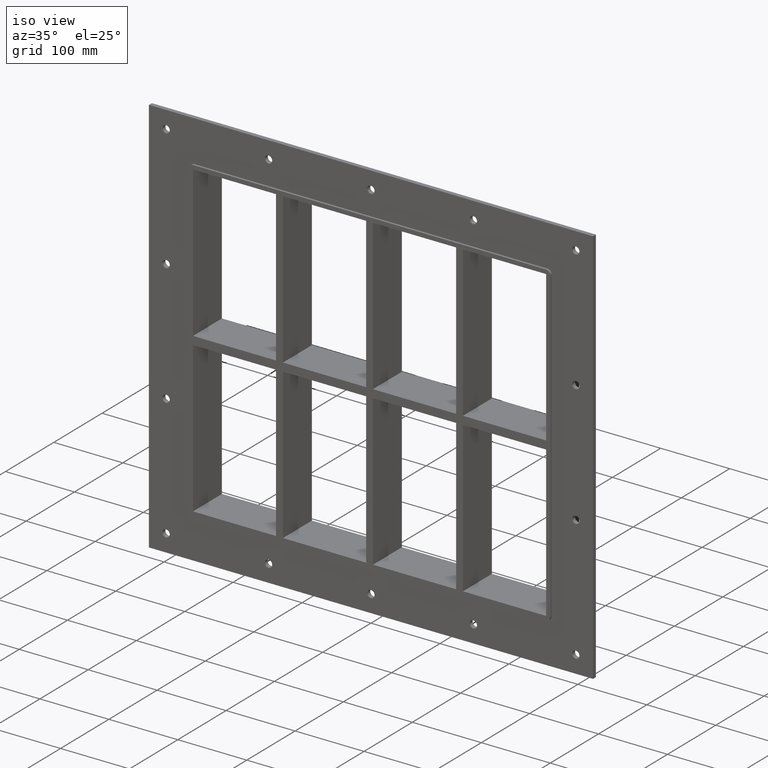
[diagram: clean part render]
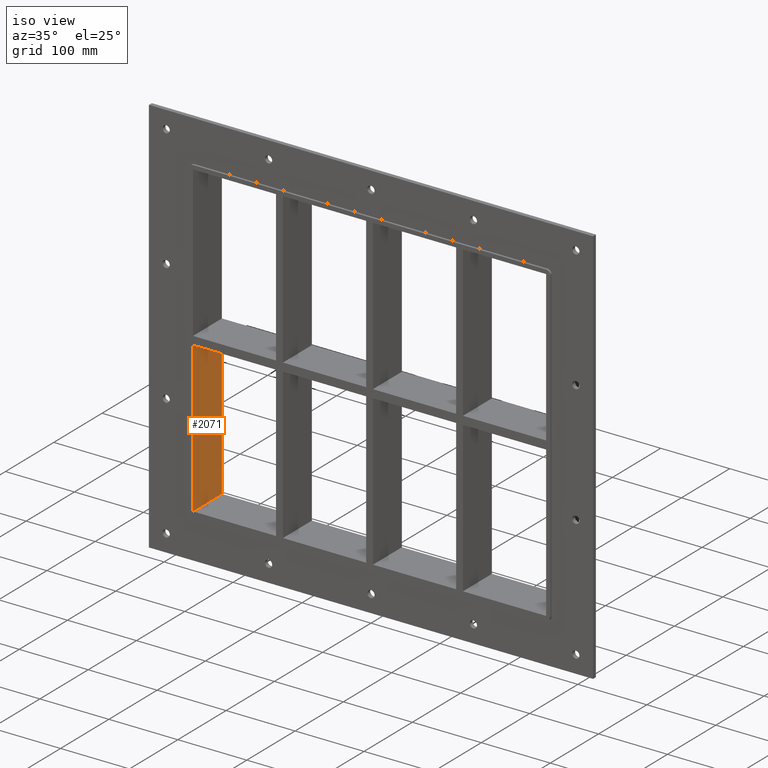
[diagram: same view with one face highlighted and labeled with its STEP entity id]
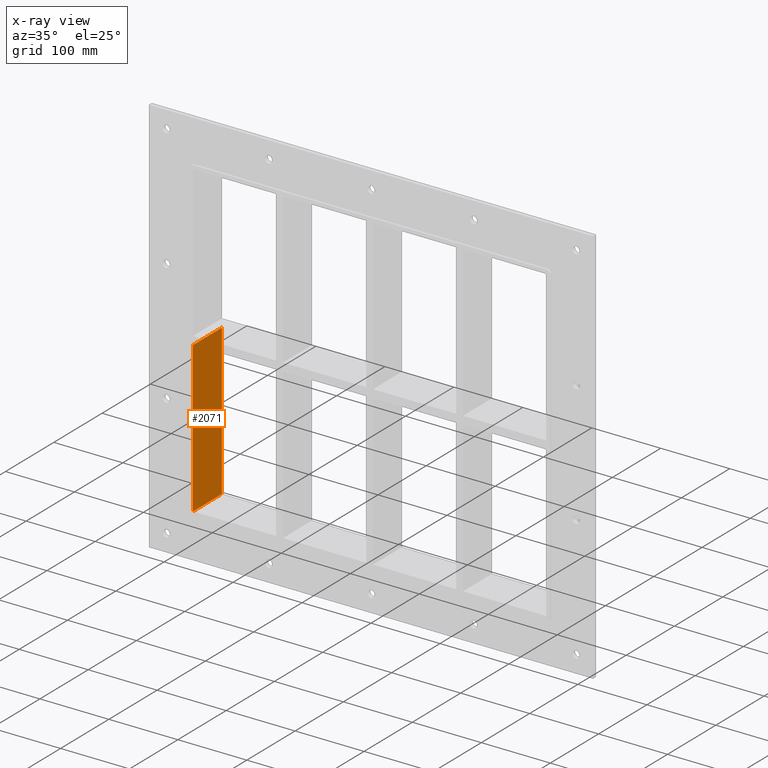
[diagram: x-ray of the same camera — body ghosted, the highlighted face saturated]
A machine part, iso view. The second image highlights one B-rep face of the part: STEP entity #2071.
The next image is the same camera in x-ray: the body ghosted, the highlighted face saturated — about 0% of this face is hidden behind the body in this view.
In plain terms, the highlighted planar face has unit normal (-1, 0, 0).
Its self-contained STEP definition (entity closure, byte-faithful):
#1088=CARTESIAN_POINT('',(-256.00000000000045,-3.0,-6.000000000010175));
#1089=VERTEX_POINT('',#1088);
#1104=CARTESIAN_POINT('',(-256.00000000000011,-3.0,-224.00000000000003));
#1105=VERTEX_POINT('',#1104);
#1112=CARTESIAN_POINT('',(-256.00000000000011,-3.0,-224.00000000000003));
#1113=DIRECTION('',(0.0,0.0,1.0));
#1114=VECTOR('',#1113,217.99999999998985);
#1115=LINE('',#1112,#1114);
#1116=EDGE_CURVE('',#1105,#1089,#1115,.T.);
#1352=CARTESIAN_POINT('',(-256.00000000000045,57.0,-6.000000000010175));
#1353=VERTEX_POINT('',#1352);
#1354=CARTESIAN_POINT('',(-256.00000000000011,57.0,-224.00000000000003));
#1355=VERTEX_POINT('',#1354);
#1356=CARTESIAN_POINT('',(-256.00000000000011,57.0,-6.000000000010175));
#1357=DIRECTION('',(0.0,0.0,-1.0));
#1358=VECTOR('',#1357,217.99999999998985);
#1359=LINE('',#1356,#1358);
#1360=EDGE_CURVE('',#1353,#1355,#1359,.T.);
#1516=CARTESIAN_POINT('',(-256.00000000000011,57.000000000000007,-6.000000000010175));
#1517=DIRECTION('',(0.0,-1.0,0.0));
#1518=VECTOR('',#1517,60.000000000000007);
#1519=LINE('',#1516,#1518);
#1520=EDGE_CURVE('',#1353,#1089,#1519,.T.);
#1666=CARTESIAN_POINT('',(-256.00000000000011,-3.0,-224.00000000000003));
#1667=DIRECTION('',(0.0,1.0,0.0));
#1668=VECTOR('',#1667,60.0);
#1669=LINE('',#1666,#1668);
#1670=EDGE_CURVE('',#1105,#1355,#1669,.T.);
#2060=CARTESIAN_POINT('',(-256.00000000000011,0.0,-224.00000000000003));
#2061=DIRECTION('',(-1.0,0.0,0.0));
#2062=DIRECTION('',(0.0,0.0,1.0));
#2063=AXIS2_PLACEMENT_3D('',#2060,#2061,#2062);
#2064=PLANE('',#2063);
#2065=ORIENTED_EDGE('',*,*,#1520,.T.);
#2066=ORIENTED_EDGE('',*,*,#1116,.F.);
#2067=ORIENTED_EDGE('',*,*,#1670,.T.);
#2068=ORIENTED_EDGE('',*,*,#1360,.F.);
#2069=EDGE_LOOP('',(#2065,#2066,#2067,#2068));
#2070=FACE_OUTER_BOUND('',#2069,.T.);
#2071=ADVANCED_FACE('',(#2070),#2064,.F.);